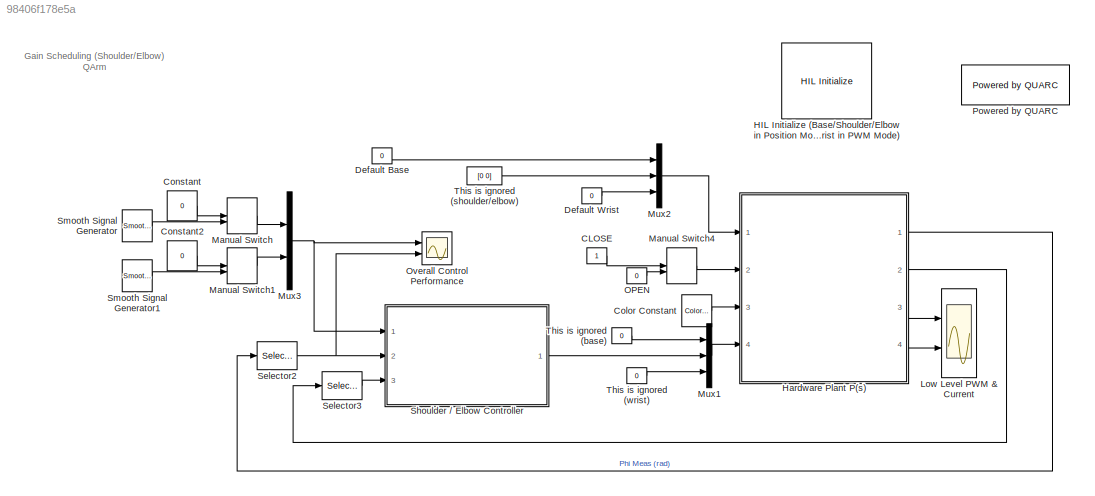
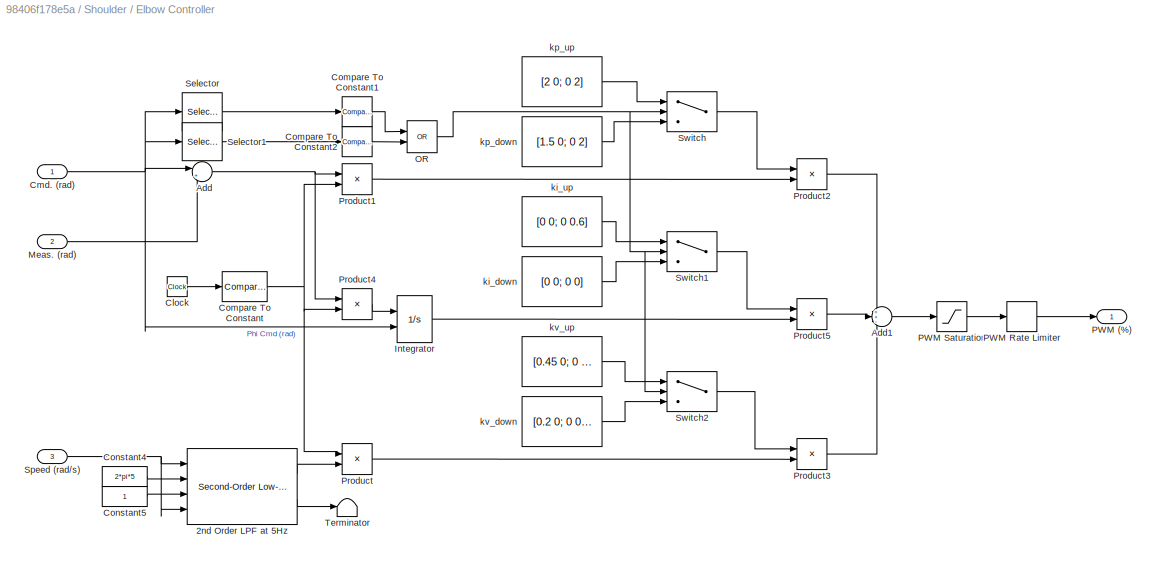
MODEL slx_98406f178e5a
KIND model
CONFIG AbsTol = auto
CONFIG EnableMultiTasking = on
CONFIG FixedStep = 1/500
CONFIG MaxStep = auto
CONFIG MinStep = auto
CONFIG RelTol = 1e-3
CONFIG SampleTimeConstraint = Unconstrained
CONFIG SolverName = ode4
CONFIG StartTime = 0.0
CONFIG StopTime = inf
BLOCK [Constant]  OPEN
  Value = 0
BLOCK [Constant] CLOSE 
BLOCK [Reference] Color Constant  REF=quarc_library/Sources/Signals/Color Constant
  Ports = [0, 1]
  SourceBlock = quarc_library/Sources/Signals/Color Constant
  SourceProductName = QUARC Targets
  SourceType = Color Constant
BLOCK [Constant] Constant
  Value = 0
BLOCK [Constant] Constant2
  Value = 0
BLOCK [Constant] Default Base
  Value = 0
BLOCK [Constant] Default Wrist
  Value = 0
BLOCK [Reference] HIL Initialize (Base//Shoulder//Elbow in Position Mode Wrist in PWM Mode)  REF=quarc_library/Data Acquisition/Generic/Configuration/HIL Initialize
  AttributesFormatString = %<object_name> (%<board_type>-%<board_number>)
  Ports = []
  SourceBlock = quarc_library/Data Acquisition/Generic/Configuration/HIL Initialize
  SourceProductName = QUARC Targets
  SourceType = HIL Initialize
  UserDataPersistent = on
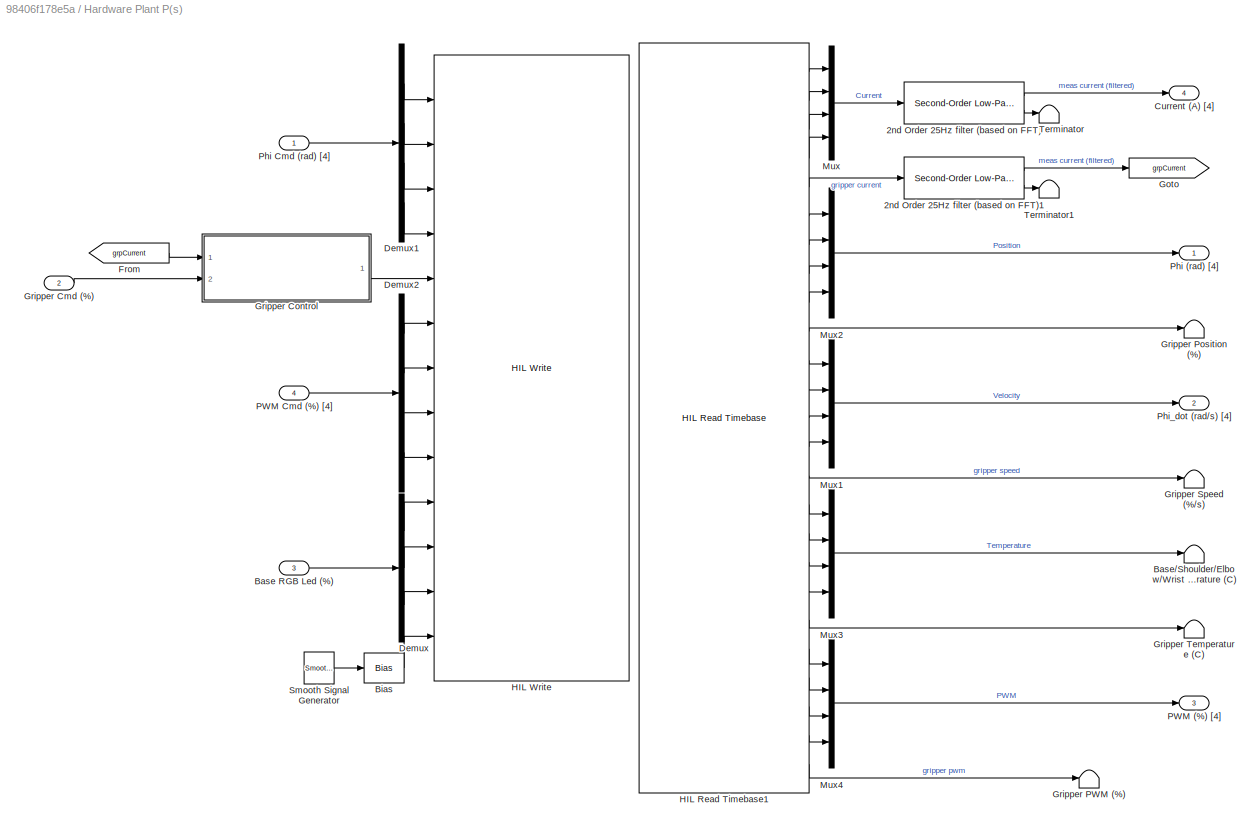
BLOCK [SubSystem] Hardware Plant P(s)
  Permissions = NoReadOrWrite
  Ports = [4, 4]
  RequestExecContextInheritance = off
BLOCK [Reference] Hardware Plant P(s)/2nd Order 25Hz filter (based on FFT)  REF=quarc_library/Continuous/Second-Order
Low-Pass Filter
  Ports = [1, 2]
  SourceBlock = quarc_library/Continuous/Second-Order\nLow-Pass Filter
  SourceProductName = QUARC Targets
  SourceType = Second-Order Low-Pass Filter
BLOCK [Reference] Hardware Plant P(s)/2nd Order 25Hz filter (based on FFT)1  REF=quarc_library/Continuous/Second-Order
Low-Pass Filter
  Ports = [1, 2]
  SourceBlock = quarc_library/Continuous/Second-Order\nLow-Pass Filter
  SourceProductName = QUARC Targets
  SourceType = Second-Order Low-Pass Filter
BLOCK [Inport] Hardware Plant P(s)/Base RGB Led (%)
  Port = 3
BLOCK [Terminator] Hardware Plant P(s)/Base//Shoulder//Elbow//Wrist Temperature (C)
BLOCK [Bias] Hardware Plant P(s)/Bias
  Bias = 0.5
  SaturateOnIntegerOverflow = off
BLOCK [Outport] Hardware Plant P(s)/Current (A) [4]
  NameLocation = top
  Port = 4
  VectorParamsAs1DForOutWhenUnconnected = off
BLOCK [Demux] Hardware Plant P(s)/Demux
  Outputs = 3
  Ports = [1, 3]
BLOCK [Demux] Hardware Plant P(s)/Demux1
  Ports = [1, 4]
BLOCK [Demux] Hardware Plant P(s)/Demux2
  Ports = [1, 4]
BLOCK [From] Hardware Plant P(s)/From
  GotoTag = grpCurrent
BLOCK [Goto] Hardware Plant P(s)/Goto
  GotoTag = grpCurrent
BLOCK [Inport] Hardware Plant P(s)/Gripper Cmd (%)
  Port = 2
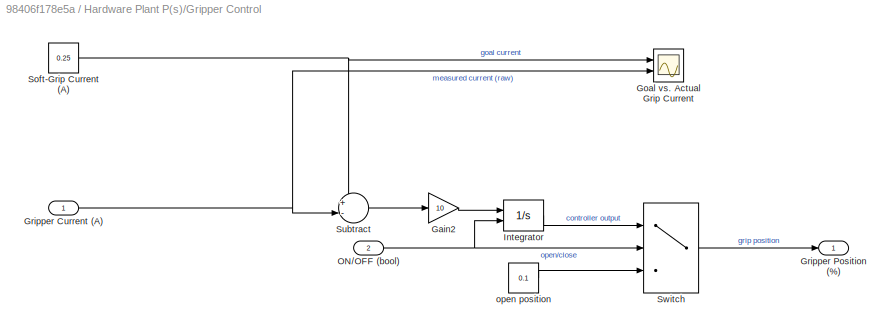
BLOCK [SubSystem] Hardware Plant P(s)/Gripper Control
  Ports = [2, 1]
  RequestExecContextInheritance = off
BLOCK [Gain] Hardware Plant P(s)/Gripper Control/Gain2
  Gain = 10
BLOCK [Scope] Hardware Plant P(s)/Gripper Control/Goal vs. Actual Grip Current
  Floating = off
  NameLocation = top
  NumInputPorts = 2
  Ports = [2]
  ScopeSpecificationString = Simulink.scopes.TimeScopeBlockCfg('CurrentConfiguration', extmgr.ConfigurationSet(extmgr.Configuration('Core','General UI',true),extmgr.Configuration('Core','Source UI',true),extmgr.Configuration('Sources','WiredSimulink',true,'DataLoggingVariableName','ScopeData4'),extmgr.Configuration('Visuals','Time Domain',true,'SerializedDisplays',{struct('MinYLimReal','0.00229','MaxYLimReal','0.27702','YLabe...<+1463ch>
BLOCK [Inport] Hardware Plant P(s)/Gripper Control/Gripper Current (A)
BLOCK [Outport] Hardware Plant P(s)/Gripper Control/Gripper Position (%)
  VectorParamsAs1DForOutWhenUnconnected = off
BLOCK [Integrator] Hardware Plant P(s)/Gripper Control/Integrator
  ExternalReset = either
  InitialCondition = 0.1
  LimitOutput = on
  LowerSaturationLimit = 0.1
  Ports = [2, 1]
  UpperSaturationLimit = 0.9
BLOCK [Inport] Hardware Plant P(s)/Gripper Control/ON//OFF (bool)
  Port = 2
BLOCK [Constant] Hardware Plant P(s)/Gripper Control/Soft-Grip Current (A)
  Value = 0.25
BLOCK [Sum] Hardware Plant P(s)/Gripper Control/Subtract
  Inputs = +-|
  Ports = [2, 1]
BLOCK [Switch] Hardware Plant P(s)/Gripper Control/Switch
  Criteria = u2 > Threshold
  InputSameDT = off
  SaturateOnIntegerOverflow = off
BLOCK [Constant] Hardware Plant P(s)/Gripper Control/open position
  Value = 0.1
BLOCK [Terminator] Hardware Plant P(s)/Gripper PWM (%)
BLOCK [Terminator] Hardware Plant P(s)/Gripper Position (%)
BLOCK [Terminator] Hardware Plant P(s)/Gripper Speed (%//s)
BLOCK [Terminator] Hardware Plant P(s)/Gripper Temperature (C)
BLOCK [Reference] Hardware Plant P(s)/HIL Read Timebase1  REF=quarc_library/Data Acquisition/Generic/Timebases/HIL Read
Timebase
  AttributesFormatString = (%<object_name>)
  Ports = [0, 25]
  SourceBlock = quarc_library/Data Acquisition/Generic/Timebases/HIL Read\nTimebase
  SourceProductName = QUARC Targets
  SourceType = HIL Read Timebase
  UserDataPersistent = on
BLOCK [Reference] Hardware Plant P(s)/HIL Write  REF=quarc_library/Data Acquisition/Generic/Immediate I//O/HIL Write
  AttributesFormatString = (%<object_name>)
  Ports = [13]
  SourceBlock = quarc_library/Data Acquisition/Generic/Immediate I//O/HIL Write
  SourceProductName = QUARC Targets
  SourceType = HIL Write
  UserDataPersistent = on
BLOCK [Mux] Hardware Plant P(s)/Mux
  DisplayOption = bar
  Ports = [4, 1]
BLOCK [Mux] Hardware Plant P(s)/Mux1
  DisplayOption = bar
  Ports = [4, 1]
BLOCK [Mux] Hardware Plant P(s)/Mux2
  DisplayOption = bar
  Ports = [4, 1]
BLOCK [Mux] Hardware Plant P(s)/Mux3
  DisplayOption = bar
  Ports = [4, 1]
BLOCK [Mux] Hardware Plant P(s)/Mux4
  DisplayOption = bar
  Ports = [4, 1]
BLOCK [Outport] Hardware Plant P(s)/PWM (%) [4]
  Port = 3
  VectorParamsAs1DForOutWhenUnconnected = off
BLOCK [Inport] Hardware Plant P(s)/PWM Cmd (%) [4]
  Port = 4
BLOCK [Outport] Hardware Plant P(s)/Phi (rad) [4]
  VectorParamsAs1DForOutWhenUnconnected = off
BLOCK [Inport] Hardware Plant P(s)/Phi Cmd (rad) [4]
BLOCK [Outport] Hardware Plant P(s)/Phi_dot (rad//s) [4]
  Port = 2
  VectorParamsAs1DForOutWhenUnconnected = off
BLOCK [Reference] Hardware Plant P(s)/Smooth Signal Generator  REF=quarc_library/Sources/Signals/Smooth Signal
Generator
  Ports = [0, 1]
  SourceBlock = quarc_library/Sources/Signals/Smooth Signal\nGenerator
  SourceProductName = QUARC Targets
  SourceType = Smooth Signal Generator
BLOCK [Terminator] Hardware Plant P(s)/Terminator
BLOCK [Terminator] Hardware Plant P(s)/Terminator1
BLOCK [Scope] Low Level PWM & Current
  Floating = off
  NumInputPorts = 2
  Ports = [2]
  ScopeSpecificationString = Simulink.scopes.TimeScopeBlockCfg('CurrentConfiguration', extmgr.ConfigurationSet(extmgr.Configuration('Core','General UI',true),extmgr.Configuration('Core','Source UI',true),extmgr.Configuration('Sources','WiredSimulink',true,'DataLoggingVariableName','ScopeData1'),extmgr.Configuration('Visuals','Time Domain',true,'SerializedDisplays',{struct('MinYLimReal','-1.1','MaxYLimReal','1.1','YLabelReal',...<+2139ch>
BLOCK [ManualSwitch] Manual Switch
  CurrentSetting = 0
BLOCK [ManualSwitch] Manual Switch1
  CurrentSetting = 0
BLOCK [ManualSwitch] Manual Switch4
  CurrentSetting = 0
BLOCK [Mux] Mux1
  DisplayOption = bar
  Inputs = 3
  Ports = [3, 1]
BLOCK [Mux] Mux2
  DisplayOption = bar
  Inputs = 3
  Ports = [3, 1]
BLOCK [Mux] Mux3
  DisplayOption = bar
  Inputs = 2
  Ports = [2, 1]
BLOCK [Scope] Overall Control Performance
  Floating = off
  NumInputPorts = 2
  Ports = [2]
  ScopeSpecificationString = Simulink.scopes.TimeScopeBlockCfg('CurrentConfiguration', extmgr.ConfigurationSet(extmgr.Configuration('Core','General UI',true),extmgr.Configuration('Core','Source UI',true),extmgr.Configuration('Sources','WiredSimulink',true),extmgr.Configuration('Visuals','Time Domain',true,'SerializedDisplays',{struct('MinYLimReal','-0.74662','MaxYLimReal','0.73893','YLabelReal','radians','MinYLimMag','0.00000...<+1636ch>
BLOCK [Reference] Powered by QUARC  REF=quarc_library/Logos/Powered by QUARC
  Ports = []
  SourceBlock = quarc_library/Logos/Powered by QUARC
  SourceProductName = QUARC Targets
  SourceType = Powered by QUARC
BLOCK [Selector] Selector2
  IndexOptions = Index vector (dialog)
  Indices = [2:3]
  InputPortWidth = 4
  OutputSizes = 1
  Ports = [1, 1]
BLOCK [Selector] Selector3
  IndexOptions = Index vector (dialog)
  Indices = [2:3]
  InputPortWidth = 4
  OutputSizes = 1
  Ports = [1, 1]
BLOCK [SubSystem] Shoulder // Elbow Controller
  Ports = [3, 1]
  RequestExecContextInheritance = off
BLOCK [Reference] Shoulder // Elbow Controller/2nd Order LPF at 5Hz   REF=quarc_library/Continuous/Second-Order
Low-Pass Filter
  Ports = [4, 2]
  SourceBlock = quarc_library/Continuous/Second-Order\nLow-Pass Filter
  SourceProductName = QUARC Targets
  SourceType = Second-Order Low-Pass Filter
BLOCK [Sum] Shoulder // Elbow Controller/Add
  Inputs = |+-
  Ports = [2, 1]
BLOCK [Sum] Shoulder // Elbow Controller/Add1
  Inputs = ++-
  Ports = [3, 1]
BLOCK [Clock] Shoulder // Elbow Controller/Clock
BLOCK [Inport] Shoulder // Elbow Controller/Cmd. (rad)
BLOCK [Reference] Shoulder // Elbow Controller/Compare To Constant  REF=simulink/Logic and Bit
Operations/Compare
To Constant
  Ports = [1, 1]
  SourceBlock = simulink/Logic and Bit\nOperations/Compare\nTo Constant
  SourceProductBaseCode = SL
  SourceType = Compare To Constant
BLOCK [Reference] Shoulder // Elbow Controller/Compare To Constant1  REF=simulink/Logic and Bit
Operations/Compare
To Constant
  Ports = [1, 1]
  SourceBlock = simulink/Logic and Bit\nOperations/Compare\nTo Constant
  SourceProductBaseCode = SL
  SourceType = Compare To Constant
BLOCK [Reference] Shoulder // Elbow Controller/Compare To Constant2  REF=simulink/Logic and Bit
Operations/Compare
To Constant
  Ports = [1, 1]
  SourceBlock = simulink/Logic and Bit\nOperations/Compare\nTo Constant
  SourceProductBaseCode = SL
  SourceType = Compare To Constant
BLOCK [Constant] Shoulder // Elbow Controller/Constant4
  Value = 2*pi*5
BLOCK [Constant] Shoulder // Elbow Controller/Constant5
BLOCK [Integrator] Shoulder // Elbow Controller/Integrator
  ExternalReset = either
  LimitOutput = on
  LowerSaturationLimit = [-0.3 -0.3]
  Ports = [2, 1]
  UpperSaturationLimit = [0.3 0.3]
BLOCK [Inport] Shoulder // Elbow Controller/Meas. (rad)
  Port = 2
BLOCK [Logic] Shoulder // Elbow Controller/OR
  AllPortsSameDT = off
  IconShape = distinctive
  Operator = OR
  OutDataTypeStr = boolean
  Ports = [2, 1]
BLOCK [Outport] Shoulder // Elbow Controller/PWM (%)
  VectorParamsAs1DForOutWhenUnconnected = off
BLOCK [RateLimiter] Shoulder // Elbow Controller/PWM Rate Limiter
  FallingSlewLimit = -2
  RisingSlewLimit = 2
  SampleTimeMode = inherited
BLOCK [Saturate] Shoulder // Elbow Controller/PWM Saturation
  LowerLimit = -1
  UpperLimit = 1
BLOCK [Product] Shoulder // Elbow Controller/Product
  Ports = [2, 1]
BLOCK [Product] Shoulder // Elbow Controller/Product1
  Ports = [2, 1]
BLOCK [Product] Shoulder // Elbow Controller/Product2
  Multiplication = Matrix(*)
  Ports = [2, 1]
BLOCK [Product] Shoulder // Elbow Controller/Product3
  Multiplication = Matrix(*)
  Ports = [2, 1]
BLOCK [Product] Shoulder // Elbow Controller/Product4
  Ports = [2, 1]
BLOCK [Product] Shoulder // Elbow Controller/Product5
  Multiplication = Matrix(*)
  Ports = [2, 1]
BLOCK [Selector] Shoulder // Elbow Controller/Selector
  IndexOptions = Index vector (dialog)
  Indices = [2]
  InputPortWidth = 2
  OutputSizes = 1
  Ports = [1, 1]
BLOCK [Selector] Shoulder // Elbow Controller/Selector1
  IndexOptions = Index vector (dialog)
  Indices = 1
  InputPortWidth = 2
  OutputSizes = 1
  Ports = [1, 1]
BLOCK [Inport] Shoulder // Elbow Controller/Speed (rad//s)
  Port = 3
BLOCK [Switch] Shoulder // Elbow Controller/Switch
  Criteria = u2 > Threshold
  InputSameDT = off
  SaturateOnIntegerOverflow = off
BLOCK [Switch] Shoulder // Elbow Controller/Switch1
  Criteria = u2 > Threshold
  InputSameDT = off
  SaturateOnIntegerOverflow = off
BLOCK [Switch] Shoulder // Elbow Controller/Switch2
  Criteria = u2 > Threshold
  InputSameDT = off
  SaturateOnIntegerOverflow = off
BLOCK [Terminator] Shoulder // Elbow Controller/Terminator
BLOCK [Constant] Shoulder // Elbow Controller/ki_down
  NameLocation = left
  Value = [0 0; 0 0]
  VectorParams1D = off
BLOCK [Constant] Shoulder // Elbow Controller/ki_up
  NameLocation = left
  Value = [0 0; 0 0.6]
  VectorParams1D = off
BLOCK [Constant] Shoulder // Elbow Controller/kp_down
  NameLocation = left
  Value = [1.5 0; 0 2]
  VectorParams1D = off
BLOCK [Constant] Shoulder // Elbow Controller/kp_up
  NameLocation = left
  Value = [2 0; 0 2]
  VectorParams1D = off
BLOCK [Constant] Shoulder // Elbow Controller/kv_down
  NameLocation = left
  Value = [0.2 0; 0 0.25]
  VectorParams1D = off
BLOCK [Constant] Shoulder // Elbow Controller/kv_up
  NameLocation = left
  Value = [0.45 0; 0 0.2]
  VectorParams1D = off
BLOCK [Reference] Smooth Signal Generator  REF=quarc_library/Sources/Signals/Smooth Signal
Generator
  Ports = [0, 1]
  SourceBlock = quarc_library/Sources/Signals/Smooth Signal\nGenerator
  SourceProductName = QUARC Targets
  SourceType = Smooth Signal Generator
BLOCK [Reference] Smooth Signal Generator1  REF=quarc_library/Sources/Signals/Smooth Signal
Generator
  Ports = [0, 1]
  SourceBlock = quarc_library/Sources/Signals/Smooth Signal\nGenerator
  SourceProductName = QUARC Targets
  SourceType = Smooth Signal Generator
BLOCK [Constant] This is ignored (base)
  NameLocation = top
  Value = 0
BLOCK [Constant] This is ignored (shoulder//elbow)
  Value = [0 0]
BLOCK [Constant] This is ignored (wrist)
  Value = 0
ANNOTATION (root): Gain Scheduling (Shoulder/Elbow) QArm
LINE  OPEN:1 -> Manual Switch4:2
LINE CLOSE :1 -> Manual Switch4:1
LINE Color Constant:1 -> Hardware Plant P(s):3
LINE Constant2:1 -> Manual Switch1:1
LINE Constant:1 -> Manual Switch:1
LINE Default Base:1 -> Mux2:1
LINE Default Wrist:1 -> Mux2:3
LINE Hardware Plant P(s)/2nd Order 25Hz filter (based on FFT)1:1 -> Hardware Plant P(s)/Goto:1
LINE Hardware Plant P(s)/2nd Order 25Hz filter (based on FFT)1:2 -> Hardware Plant P(s)/Terminator1:1
LINE Hardware Plant P(s)/2nd Order 25Hz filter (based on FFT):1 -> Hardware Plant P(s)/Current (A) [4]:1
LINE Hardware Plant P(s)/2nd Order 25Hz filter (based on FFT):2 -> Hardware Plant P(s)/Terminator:1
LINE Hardware Plant P(s)/Base RGB Led (%):1 -> Hardware Plant P(s)/Demux:1
LINE Hardware Plant P(s)/Bias:1 -> Hardware Plant P(s)/HIL Write:13
LINE Hardware Plant P(s)/Demux1:1 -> Hardware Plant P(s)/HIL Write:1
LINE Hardware Plant P(s)/Demux1:2 -> Hardware Plant P(s)/HIL Write:2
LINE Hardware Plant P(s)/Demux1:3 -> Hardware Plant P(s)/HIL Write:3
LINE Hardware Plant P(s)/Demux1:4 -> Hardware Plant P(s)/HIL Write:4
LINE Hardware Plant P(s)/Demux2:1 -> Hardware Plant P(s)/HIL Write:6
LINE Hardware Plant P(s)/Demux2:2 -> Hardware Plant P(s)/HIL Write:7
LINE Hardware Plant P(s)/Demux2:3 -> Hardware Plant P(s)/HIL Write:8
LINE Hardware Plant P(s)/Demux2:4 -> Hardware Plant P(s)/HIL Write:9
LINE Hardware Plant P(s)/Demux:1 -> Hardware Plant P(s)/HIL Write:10
LINE Hardware Plant P(s)/Demux:2 -> Hardware Plant P(s)/HIL Write:11
LINE Hardware Plant P(s)/Demux:3 -> Hardware Plant P(s)/HIL Write:12
LINE Hardware Plant P(s)/From:1 -> Hardware Plant P(s)/Gripper Control:1
LINE Hardware Plant P(s)/Gripper Cmd (%):1 -> Hardware Plant P(s)/Gripper Control:2
LINE Hardware Plant P(s)/Gripper Control/Gain2:1 -> Hardware Plant P(s)/Gripper Control/Integrator:1
NET Hardware Plant P(s)/Gripper Control/Gripper Current (A):1 -> Hardware Plant P(s)/Gripper Control/Goal vs. Actual Grip Current:2, Hardware Plant P(s)/Gripper Control/Subtract:2
LINE Hardware Plant P(s)/Gripper Control/Integrator:1 -> Hardware Plant P(s)/Gripper Control/Switch:1
NET Hardware Plant P(s)/Gripper Control/ON//OFF (bool):1 -> Hardware Plant P(s)/Gripper Control/Integrator:2, Hardware Plant P(s)/Gripper Control/Switch:2
NET Hardware Plant P(s)/Gripper Control/Soft-Grip Current (A):1 -> Hardware Plant P(s)/Gripper Control/Goal vs. Actual Grip Current:1, Hardware Plant P(s)/Gripper Control/Subtract:1
LINE Hardware Plant P(s)/Gripper Control/Subtract:1 -> Hardware Plant P(s)/Gripper Control/Gain2:1
LINE Hardware Plant P(s)/Gripper Control/Switch:1 -> Hardware Plant P(s)/Gripper Control/Gripper Position (%):1
LINE Hardware Plant P(s)/Gripper Control/open position:1 -> Hardware Plant P(s)/Gripper Control/Switch:3
LINE Hardware Plant P(s)/Gripper Control:1 -> Hardware Plant P(s)/HIL Write:5
LINE Hardware Plant P(s)/HIL Read Timebase1:1 -> Hardware Plant P(s)/Mux:1
LINE Hardware Plant P(s)/HIL Read Timebase1:10 -> Hardware Plant P(s)/Gripper Position (%):1
LINE Hardware Plant P(s)/HIL Read Timebase1:11 -> Hardware Plant P(s)/Mux1:1
LINE Hardware Plant P(s)/HIL Read Timebase1:12 -> Hardware Plant P(s)/Mux1:2
LINE Hardware Plant P(s)/HIL Read Timebase1:13 -> Hardware Plant P(s)/Mux1:3
LINE Hardware Plant P(s)/HIL Read Timebase1:14 -> Hardware Plant P(s)/Mux1:4
LINE Hardware Plant P(s)/HIL Read Timebase1:15 -> Hardware Plant P(s)/Gripper Speed (%//s):1
LINE Hardware Plant P(s)/HIL Read Timebase1:16 -> Hardware Plant P(s)/Mux3:1
LINE Hardware Plant P(s)/HIL Read Timebase1:17 -> Hardware Plant P(s)/Mux3:2
LINE Hardware Plant P(s)/HIL Read Timebase1:18 -> Hardware Plant P(s)/Mux3:3
LINE Hardware Plant P(s)/HIL Read Timebase1:19 -> Hardware Plant P(s)/Mux3:4
LINE Hardware Plant P(s)/HIL Read Timebase1:2 -> Hardware Plant P(s)/Mux:2
LINE Hardware Plant P(s)/HIL Read Timebase1:20 -> Hardware Plant P(s)/Gripper Temperature (C):1
LINE Hardware Plant P(s)/HIL Read Timebase1:21 -> Hardware Plant P(s)/Mux4:1
LINE Hardware Plant P(s)/HIL Read Timebase1:22 -> Hardware Plant P(s)/Mux4:2
LINE Hardware Plant P(s)/HIL Read Timebase1:23 -> Hardware Plant P(s)/Mux4:3
LINE Hardware Plant P(s)/HIL Read Timebase1:24 -> Hardware Plant P(s)/Mux4:4
LINE Hardware Plant P(s)/HIL Read Timebase1:25 -> Hardware Plant P(s)/Gripper PWM (%):1
LINE Hardware Plant P(s)/HIL Read Timebase1:3 -> Hardware Plant P(s)/Mux:3
LINE Hardware Plant P(s)/HIL Read Timebase1:4 -> Hardware Plant P(s)/Mux:4
LINE Hardware Plant P(s)/HIL Read Timebase1:5 -> Hardware Plant P(s)/2nd Order 25Hz filter (based on FFT)1:1
LINE Hardware Plant P(s)/HIL Read Timebase1:6 -> Hardware Plant P(s)/Mux2:1
LINE Hardware Plant P(s)/HIL Read Timebase1:7 -> Hardware Plant P(s)/Mux2:2
LINE Hardware Plant P(s)/HIL Read Timebase1:8 -> Hardware Plant P(s)/Mux2:3
LINE Hardware Plant P(s)/HIL Read Timebase1:9 -> Hardware Plant P(s)/Mux2:4
LINE Hardware Plant P(s)/Mux1:1 -> Hardware Plant P(s)/Phi_dot (rad//s) [4]:1
LINE Hardware Plant P(s)/Mux2:1 -> Hardware Plant P(s)/Phi (rad) [4]:1
LINE Hardware Plant P(s)/Mux3:1 -> Hardware Plant P(s)/Base//Shoulder//Elbow//Wrist Temperature (C):1
LINE Hardware Plant P(s)/Mux4:1 -> Hardware Plant P(s)/PWM (%) [4]:1
LINE Hardware Plant P(s)/Mux:1 -> Hardware Plant P(s)/2nd Order 25Hz filter (based on FFT):1
LINE Hardware Plant P(s)/PWM Cmd (%) [4]:1 -> Hardware Plant P(s)/Demux2:1
LINE Hardware Plant P(s)/Phi Cmd (rad) [4]:1 -> Hardware Plant P(s)/Demux1:1
LINE Hardware Plant P(s)/Smooth Signal Generator:1 -> Hardware Plant P(s)/Bias:1
LINE Hardware Plant P(s):1 -> Selector2:1
LINE Hardware Plant P(s):2 -> Selector3:1
LINE Hardware Plant P(s):3 -> Low Level PWM & Current:1
LINE Hardware Plant P(s):4 -> Low Level PWM & Current:2
LINE Manual Switch1:1 -> Mux3:2
LINE Manual Switch4:1 -> Hardware Plant P(s):2
LINE Manual Switch:1 -> Mux3:1
LINE Mux1:1 -> Hardware Plant P(s):4
LINE Mux2:1 -> Hardware Plant P(s):1
NET Mux3:1 -> Overall Control Performance:1, Shoulder // Elbow Controller:1
NET Selector2:1 -> Overall Control Performance:2, Shoulder // Elbow Controller:2
LINE Selector3:1 -> Shoulder // Elbow Controller:3
LINE Shoulder // Elbow Controller/2nd Order LPF at 5Hz :1 -> Shoulder // Elbow Controller/Product:2
LINE Shoulder // Elbow Controller/2nd Order LPF at 5Hz :2 -> Shoulder // Elbow Controller/Terminator:1
LINE Shoulder // Elbow Controller/Add1:1 -> Shoulder // Elbow Controller/PWM Saturation:1
NET Shoulder // Elbow Controller/Add:1 -> Shoulder // Elbow Controller/Product1:1, Shoulder // Elbow Controller/Product4:1
LINE Shoulder // Elbow Controller/Clock:1 -> Shoulder // Elbow Controller/Compare To Constant:1
NET Shoulder // Elbow Controller/Cmd. (rad):1 -> Shoulder // Elbow Controller/Add:1, Shoulder // Elbow Controller/Integrator:2, Shoulder // Elbow Controller/Selector1:1, Shoulder // Elbow Controller/Selector:1
LINE Shoulder // Elbow Controller/Compare To Constant1:1 -> Shoulder // Elbow Controller/OR:1
LINE Shoulder // Elbow Controller/Compare To Constant2:1 -> Shoulder // Elbow Controller/OR:2
NET Shoulder // Elbow Controller/Compare To Constant:1 -> Shoulder // Elbow Controller/Product1:2, Shoulder // Elbow Controller/Product4:2, Shoulder // Elbow Controller/Product:1
LINE Shoulder // Elbow Controller/Constant4:1 -> Shoulder // Elbow Controller/2nd Order LPF at 5Hz :2
LINE Shoulder // Elbow Controller/Constant5:1 -> Shoulder // Elbow Controller/2nd Order LPF at 5Hz :3
LINE Shoulder // Elbow Controller/Integrator:1 -> Shoulder // Elbow Controller/Product5:2
LINE Shoulder // Elbow Controller/Meas. (rad):1 -> Shoulder // Elbow Controller/Add:2
NET Shoulder // Elbow Controller/OR:1 -> Shoulder // Elbow Controller/Switch1:2, Shoulder // Elbow Controller/Switch2:2, Shoulder // Elbow Controller/Switch:2
LINE Shoulder // Elbow Controller/PWM Rate Limiter:1 -> Shoulder // Elbow Controller/PWM (%):1
LINE Shoulder // Elbow Controller/PWM Saturation:1 -> Shoulder // Elbow Controller/PWM Rate Limiter:1
LINE Shoulder // Elbow Controller/Product1:1 -> Shoulder // Elbow Controller/Product2:2
LINE Shoulder // Elbow Controller/Product2:1 -> Shoulder // Elbow Controller/Add1:1
LINE Shoulder // Elbow Controller/Product3:1 -> Shoulder // Elbow Controller/Add1:3
LINE Shoulder // Elbow Controller/Product4:1 -> Shoulder // Elbow Controller/Integrator:1
LINE Shoulder // Elbow Controller/Product5:1 -> Shoulder // Elbow Controller/Add1:2
LINE Shoulder // Elbow Controller/Product:1 -> Shoulder // Elbow Controller/Product3:2
LINE Shoulder // Elbow Controller/Selector1:1 -> Shoulder // Elbow Controller/Compare To Constant2:1
LINE Shoulder // Elbow Controller/Selector:1 -> Shoulder // Elbow Controller/Compare To Constant1:1
NET Shoulder // Elbow Controller/Speed (rad//s):1 -> Shoulder // Elbow Controller/2nd Order LPF at 5Hz :1, Shoulder // Elbow Controller/2nd Order LPF at 5Hz :4
LINE Shoulder // Elbow Controller/Switch1:1 -> Shoulder // Elbow Controller/Product5:1
LINE Shoulder // Elbow Controller/Switch2:1 -> Shoulder // Elbow Controller/Product3:1
LINE Shoulder // Elbow Controller/Switch:1 -> Shoulder // Elbow Controller/Product2:1
LINE Shoulder // Elbow Controller/ki_down:1 -> Shoulder // Elbow Controller/Switch1:3
LINE Shoulder // Elbow Controller/ki_up:1 -> Shoulder // Elbow Controller/Switch1:1
LINE Shoulder // Elbow Controller/kp_down:1 -> Shoulder // Elbow Controller/Switch:3
LINE Shoulder // Elbow Controller/kp_up:1 -> Shoulder // Elbow Controller/Switch:1
LINE Shoulder // Elbow Controller/kv_down:1 -> Shoulder // Elbow Controller/Switch2:3
LINE Shoulder // Elbow Controller/kv_up:1 -> Shoulder // Elbow Controller/Switch2:1
LINE Shoulder // Elbow Controller:1 -> Mux1:2
LINE Smooth Signal Generator1:1 -> Manual Switch1:2
LINE Smooth Signal Generator:1 -> Manual Switch:2
LINE This is ignored (base):1 -> Mux1:1
LINE This is ignored (shoulder//elbow):1 -> Mux2:2
LINE This is ignored (wrist):1 -> Mux1:3
note: NET lines group one-source signal fan-out (src -> all destinations, sorted); 1:1 wires keep LINE
